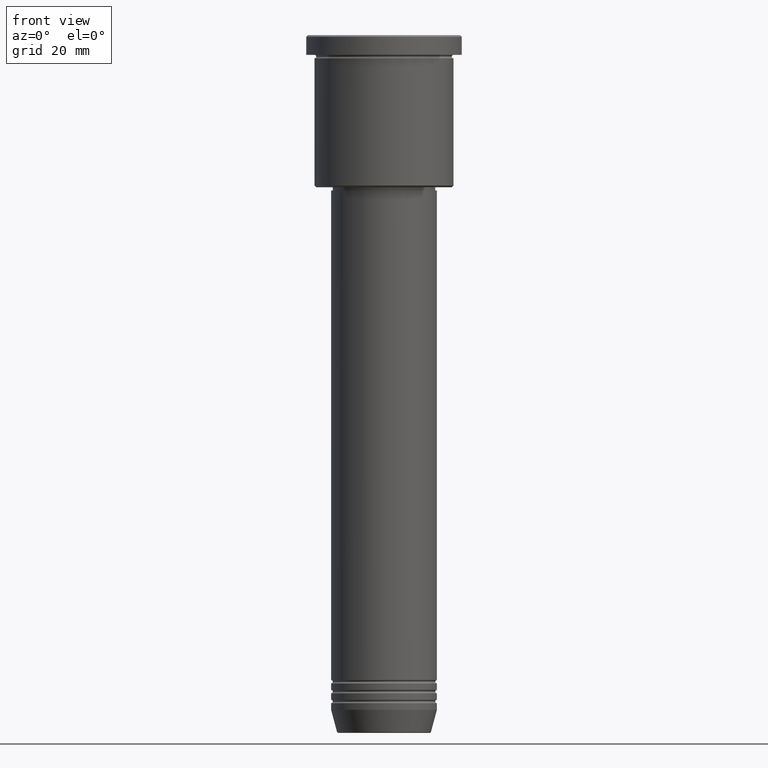
[diagram: clean part render]
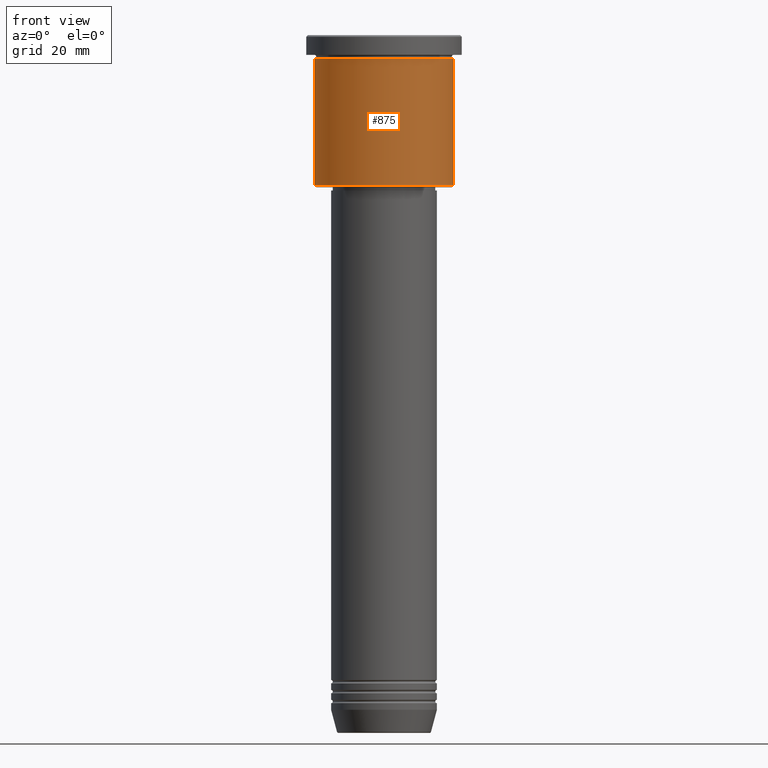
[diagram: same view with one face highlighted and labeled with its STEP entity id]
A machine part, front view. The second image highlights one B-rep face of the part: STEP entity #875.
In plain terms, the highlighted cylindrical surface (partial cylindrical patch) has radius 21 mm, axis along (-0, -0, 1).
Its self-contained STEP definition (entity closure, byte-faithful):
#13 = ORIENTED_EDGE ( 'NONE', *, *, #324, .F. ) ;
#42 = CARTESIAN_POINT ( 'NONE',  ( 0.000000000000000000, 0.000000000000000000, -6.999999999999994671 ) ) ;
#48 = AXIS2_PLACEMENT_3D ( 'NONE', #42, #1030, #1013 ) ;
#103 = ORIENTED_EDGE ( 'NONE', *, *, #246, .F. ) ;
#109 = DIRECTION ( 'NONE',  ( -1.000000000000000000, 0.000000000000000000, 0.000000000000000000 ) ) ;
#110 = ORIENTED_EDGE ( 'NONE', *, *, #269, .T. ) ;
#246 = EDGE_CURVE ( 'NONE', #832, #800, #518, .T. ) ;
#268 = CYLINDRICAL_SURFACE ( 'NONE', #686, 21.00000000000000000 ) ;
#269 = EDGE_CURVE ( 'NONE', #832, #1098, #706, .T. ) ;
#272 = DIRECTION ( 'NONE',  ( 1.000000000000000000, 0.000000000000000000, 0.000000000000000000 ) ) ;
#311 = CARTESIAN_POINT ( 'NONE',  ( 21.00000000000000000, 0.000000000000000000, 0.000000000000000000 ) ) ;
#324 = EDGE_CURVE ( 'NONE', #800, #1046, #490, .T. ) ;
#366 = CARTESIAN_POINT ( 'NONE',  ( 0.000000000000000000, 0.000000000000000000, 0.000000000000000000 ) ) ;
#390 = DIRECTION ( 'NONE',  ( -0.000000000000000000, -0.000000000000000000, 1.000000000000000000 ) ) ;
#415 = CARTESIAN_POINT ( 'NONE',  ( -21.00000000000000000, 2.571758278209441661E-15, 0.000000000000000000 ) ) ;
#443 = CARTESIAN_POINT ( 'NONE',  ( 21.00000000000000000, 0.000000000000000000, -6.999999999999994671 ) ) ;
#486 = CARTESIAN_POINT ( 'NONE',  ( -21.00000000000000000, 2.571758278209441661E-15, -6.999999999999994671 ) ) ;
#490 = CIRCLE ( 'NONE', #48, 21.00000000000000000 ) ;
#518 = LINE ( 'NONE', #415, #1066 ) ;
#686 = AXIS2_PLACEMENT_3D ( 'NONE', #366, #739, #272 ) ;
#706 = CIRCLE ( 'NONE', #1004, 21.00000000000000000 ) ;
#726 = CARTESIAN_POINT ( 'NONE',  ( -21.00000000000000000, 2.571758278209441661E-15, -45.50000000000001421 ) ) ;
#739 = DIRECTION ( 'NONE',  ( -0.000000000000000000, -0.000000000000000000, 1.000000000000000000 ) ) ;
#753 = CARTESIAN_POINT ( 'NONE',  ( 21.00000000000000000, 0.000000000000000000, -45.50000000000001421 ) ) ;
#757 = EDGE_LOOP ( 'NONE', ( #103, #110, #1113, #13 ) ) ;
#800 = VERTEX_POINT ( 'NONE', #486 ) ;
#832 = VERTEX_POINT ( 'NONE', #726 ) ;
#875 = ADVANCED_FACE ( 'NONE', ( #1094 ), #268, .T. ) ;
#929 = DIRECTION ( 'NONE',  ( -0.000000000000000000, -0.000000000000000000, 1.000000000000000000 ) ) ;
#974 = DIRECTION ( 'NONE',  ( -0.000000000000000000, -0.000000000000000000, 1.000000000000000000 ) ) ;
#1001 = CARTESIAN_POINT ( 'NONE',  ( 0.000000000000000000, 0.000000000000000000, -45.50000000000001421 ) ) ;
#1004 = AXIS2_PLACEMENT_3D ( 'NONE', #1001, #929, #109 ) ;
#1009 = EDGE_CURVE ( 'NONE', #1098, #1046, #1117, .T. ) ;
#1013 = DIRECTION ( 'NONE',  ( 1.000000000000000000, 0.000000000000000000, 0.000000000000000000 ) ) ;
#1030 = DIRECTION ( 'NONE',  ( -0.000000000000000000, -0.000000000000000000, 1.000000000000000000 ) ) ;
#1046 = VERTEX_POINT ( 'NONE', #443 ) ;
#1066 = VECTOR ( 'NONE', #974, 1000.000000000000000 ) ;
#1094 = FACE_OUTER_BOUND ( 'NONE', #757, .T. ) ;
#1098 = VERTEX_POINT ( 'NONE', #753 ) ;
#1113 = ORIENTED_EDGE ( 'NONE', *, *, #1009, .T. ) ;
#1117 = LINE ( 'NONE', #311, #1169 ) ;
#1169 = VECTOR ( 'NONE', #390, 1000.000000000000000 ) ;